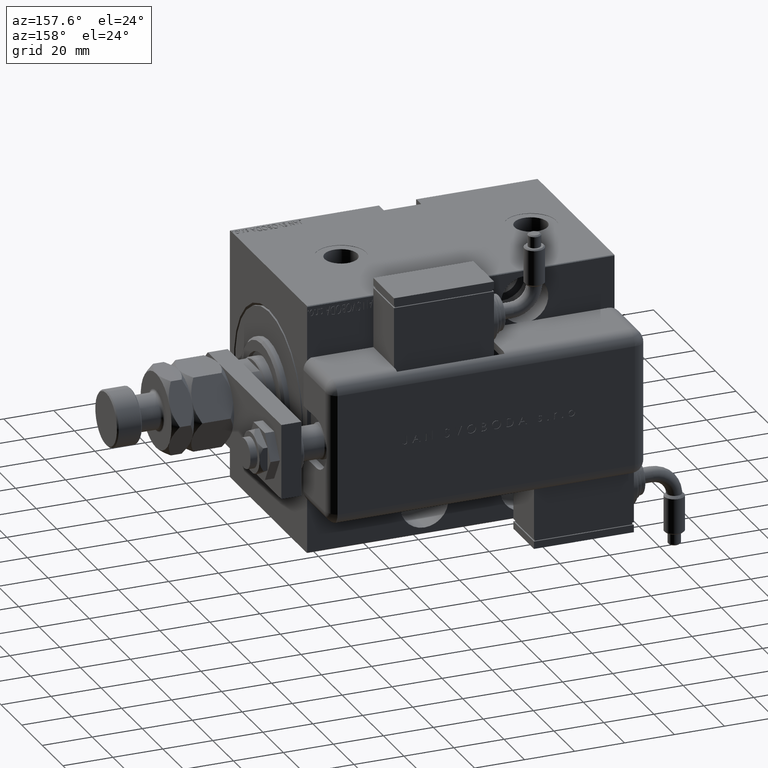
[diagram: clean part render]
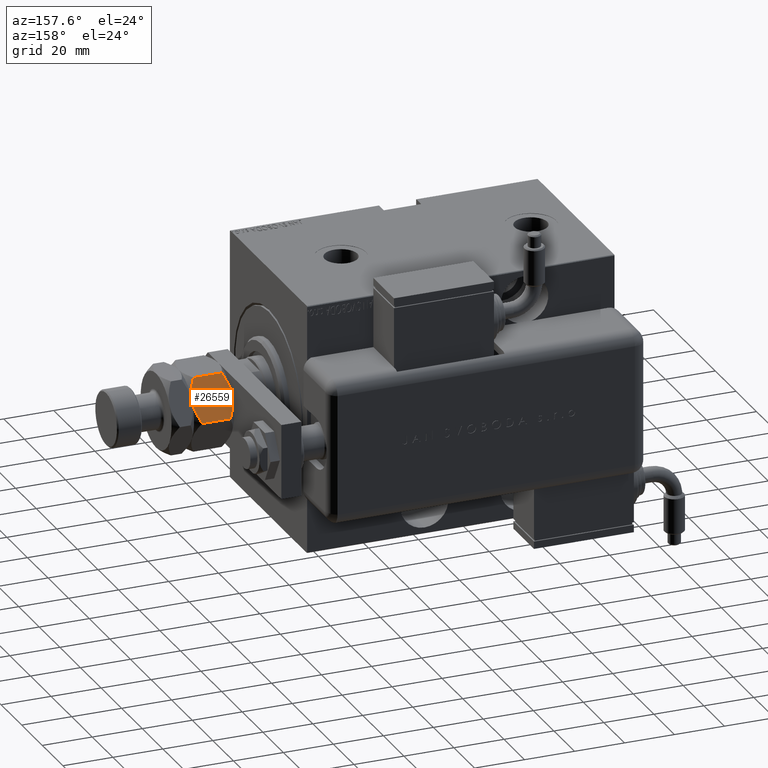
[diagram: same view with one face highlighted and labeled with its STEP entity id]
A machine part, auxiliary view. The second image highlights one B-rep face of the part: STEP entity #26559.
In plain terms, the highlighted planar face has unit normal (0, -0.866, -0.5).
Its self-contained STEP definition (entity closure, byte-faithful):
#1046 = B_SPLINE_CURVE_WITH_KNOTS ( 'NONE', 3,
 ( #11106, #59759, #20058, #19733, #45015, #10459, #54304, #35404 ),
 .UNSPECIFIED., .F., .F.,
 ( 4, 2, 2, 4 ),
 ( 2.544309033652409006E-07, 0.004488823491893913914, 0.006733108022389184058, 0.008977392552884454202 ),
 .UNSPECIFIED. ) ;
#1560 = CARTESIAN_POINT ( 'NONE',  ( -7.499999999999992895, 12.99038105676658361, 0.000000000000000000 ) ) ;
#2812 = VECTOR ( 'NONE', #18229, 1000.000000000000000 ) ;
#3969 = PLANE ( 'NONE',  #59620 ) ;
#6371 = CARTESIAN_POINT ( 'NONE',  ( -4.913081180497406386, 14.48393933357811214, 0.2303299219392169472 ) ) ;
#6703 = VERTEX_POINT ( 'NONE', #26928 ) ;
#7673 = CARTESIAN_POINT ( 'NONE',  ( -4.247772349543481596, 14.86805556622359070, 15.55242859148697043 ) ) ;
#7983 = CARTESIAN_POINT ( 'NONE',  ( -6.176419610670691895, 13.75455055083996747, 15.94046462602529957 ) ) ;
#8440 = ORIENTED_EDGE ( 'NONE', *, *, #47569, .F. ) ;
#8458 = B_SPLINE_CURVE_WITH_KNOTS ( 'NONE', 3,
 ( #56320, #31969, #51497, #7673, #46704, #7983, #47003, #18203 ),
 .UNSPECIFIED., .F., .F.,
 ( 4, 2, 2, 4 ),
 ( 2.544309033646407248E-07, 0.004488823491893900036, 0.006733108022389169313, 0.008977392552884438590 ),
 .UNSPECIFIED. ) ;
#8603 = B_SPLINE_CURVE_WITH_KNOTS ( 'NONE', 3,
 ( #35389, #59742, #10128, #30586, #20043, #35056 ),
 .UNSPECIFIED., .F., .F.,
 ( 4, 2, 4 ),
 ( 0.008977392552884438590, 0.01343452311421656012, 0.01789165367554868338 ),
 .UNSPECIFIED. ) ;
#8615 = LINE ( 'NONE', #14071, #2812 ) ;
#10128 = CARTESIAN_POINT ( 'NONE',  ( -10.08691881950258740, 11.49682277995505864, 15.76967007806078236 ) ) ;
#10459 = CARTESIAN_POINT ( 'NONE',  ( -8.823580389329299223, 12.22621156269320863, 0.05953537397470442388 ) ) ;
#10800 = EDGE_CURVE ( 'NONE', #44093, #22309, #8615, .T. ) ;
#11106 = CARTESIAN_POINT ( 'NONE',  ( -15.00000000000000000, 8.660254037844394404, 2.320508075688769711 ) ) ;
#13391 = ORIENTED_EDGE ( 'NONE', *, *, #47802, .F. ) ;
#13482 = DIRECTION ( 'NONE',  ( -0.000000000000000000, -0.000000000000000000, -1.000000000000000000 ) ) ;
#14071 = CARTESIAN_POINT ( 'NONE',  ( 0.000000000000000000, 17.32050807568877104, 16.00000000000000000 ) ) ;
#14244 = VERTEX_POINT ( 'NONE', #43988 ) ;
#18203 = CARTESIAN_POINT ( 'NONE',  ( -7.499999999999991118, 12.99038105676658184, 16.00000000000000000 ) ) ;
#18229 = DIRECTION ( 'NONE',  ( -0.000000000000000000, -0.000000000000000000, -1.000000000000000000 ) ) ;
#18998 = DIRECTION ( 'NONE',  ( 0.4999999999999995559, -0.8660254037844389297, 0.000000000000000000 ) ) ;
#19321 = DIRECTION ( 'NONE',  ( 0.8660254037844389297, 0.4999999999999995559, 0.000000000000000000 ) ) ;
#19702 = EDGE_CURVE ( 'NONE', #14244, #55301, #1046, .T. ) ;
#19733 = CARTESIAN_POINT ( 'NONE',  ( -10.75222765045650597, 11.11270654730957119, 0.4475714085130295117 ) ) ;
#20043 = CARTESIAN_POINT ( 'NONE',  ( -13.82525345580783771, 9.338494271363320109, 14.35773215783021683 ) ) ;
#20058 = CARTESIAN_POINT ( 'NONE',  ( -12.62116548881249400, 10.03367478323607109, 1.064486067744009556 ) ) ;
#20561 = CARTESIAN_POINT ( 'NONE',  ( 7.621669386706803087E-17, 17.32050807568877104, 2.320508075688761718 ) ) ;
#22309 = VERTEX_POINT ( 'NONE', #20561 ) ;
#22622 = CARTESIAN_POINT ( 'NONE',  ( -7.499999999999992895, 12.99038105676658361, 0.000000000000000000 ) ) ;
#23106 = CARTESIAN_POINT ( 'NONE',  ( -7.499999999999991118, 12.99038105676658184, 16.00000000000000000 ) ) ;
#23594 = ORIENTED_EDGE ( 'NONE', *, *, #55507, .F. ) ;
#26559 = ADVANCED_FACE ( 'NONE', ( #52285 ), #3969, .F. ) ;
#26928 = CARTESIAN_POINT ( 'NONE',  ( -15.00000000000000000, 8.660254037844392627, 13.67949192431123429 ) ) ;
#28300 = ORIENTED_EDGE ( 'NONE', *, *, #19702, .F. ) ;
#29238 = EDGE_CURVE ( 'NONE', #55301, #22309, #48031, .T. ) ;
#30586 = CARTESIAN_POINT ( 'NONE',  ( -12.61607045183964715, 10.03661640420387435, 14.93952096862911816 ) ) ;
#31969 = CARTESIAN_POINT ( 'NONE',  ( -1.176108425306640504, 16.64148155974180199, 14.35851844025821578 ) ) ;
#33896 = CARTESIAN_POINT ( 'NONE',  ( 3.803331551779305683E-16, 17.32050807568877104, 13.67949192431124317 ) ) ;
#35056 = CARTESIAN_POINT ( 'NONE',  ( -15.00000000000000000, 8.660254037844392627, 13.67949192431123429 ) ) ;
#35389 = CARTESIAN_POINT ( 'NONE',  ( -7.499999999999991118, 12.99038105676658184, 16.00000000000000000 ) ) ;
#35404 = CARTESIAN_POINT ( 'NONE',  ( -7.499999999999992895, 12.99038105676658361, 0.000000000000000000 ) ) ;
#36385 = VERTEX_POINT ( 'NONE', #23106 ) ;
#40615 = CARTESIAN_POINT ( 'NONE',  ( -6.195449321423083688, 13.74356374221447297, 3.003578830963748213E-15 ) ) ;
#43982 = VECTOR ( 'NONE', #13482, 1000.000000000000000 ) ;
#43988 = CARTESIAN_POINT ( 'NONE',  ( -15.00000000000000000, 8.660254037844394404, 2.320508075688769711 ) ) ;
#44093 = VERTEX_POINT ( 'NONE', #33896 ) ;
#45015 = CARTESIAN_POINT ( 'NONE',  ( -10.11832554202262280, 11.47869010025375403, 0.2838026619462963862 ) ) ;
#45404 = CARTESIAN_POINT ( 'NONE',  ( -2.383929548160348855, 15.94414570932928576, 1.060479031370877401 ) ) ;
#46704 = CARTESIAN_POINT ( 'NONE',  ( -4.881674457977373649, 14.50207201327941675, 15.71619733805371055 ) ) ;
#47003 = CARTESIAN_POINT ( 'NONE',  ( -6.843123817691743938, 13.36962869744650995, 16.00000000000000355 ) ) ;
#47569 = EDGE_CURVE ( 'NONE', #6703, #14244, #48018, .T. ) ;
#47802 = EDGE_CURVE ( 'NONE', #44093, #36385, #8458, .T. ) ;
#48018 = LINE ( 'NONE', #52829, #43982 ) ;
#48031 = B_SPLINE_CURVE_WITH_KNOTS ( 'NONE', 3,
 ( #1560, #40615, #6371, #45404, #50838, #55967 ),
 .UNSPECIFIED., .F., .F.,
 ( 4, 2, 4 ),
 ( 0.008977392552884454202, 0.01343452311421656706, 0.01789165367554867991 ),
 .UNSPECIFIED. ) ;
#50838 = CARTESIAN_POINT ( 'NONE',  ( -1.174746544192158293, 16.64226784216984356, 1.642267842169780501 ) ) ;
#51404 = ORIENTED_EDGE ( 'NONE', *, *, #10800, .T. ) ;
#51497 = CARTESIAN_POINT ( 'NONE',  ( -2.378834511187503331, 15.94708733029709435, 14.93551393225599710 ) ) ;
#52285 = FACE_OUTER_BOUND ( 'NONE', #55686, .T. ) ;
#52829 = CARTESIAN_POINT ( 'NONE',  ( -15.00000000000000000, 8.660254037844392627, 16.00000000000000000 ) ) ;
#53553 = CARTESIAN_POINT ( 'NONE',  ( 0.000000000000000000, 17.32050807568877104, 16.00000000000000000 ) ) ;
#54304 = CARTESIAN_POINT ( 'NONE',  ( -8.156876182308247181, 12.61113341608666083, 3.106916850528774038E-15 ) ) ;
#55301 = VERTEX_POINT ( 'NONE', #22622 ) ;
#55507 = EDGE_CURVE ( 'NONE', #36385, #6703, #8603, .T. ) ;
#55686 = EDGE_LOOP ( 'NONE', ( #28300, #8440, #23594, #13391, #51404, #60136 ) ) ;
#55967 = CARTESIAN_POINT ( 'NONE',  ( 7.621669386706803087E-17, 17.32050807568877104, 2.320508075688761718 ) ) ;
#56320 = CARTESIAN_POINT ( 'NONE',  ( 3.803331551779305683E-16, 17.32050807568877104, 13.67949192431124317 ) ) ;
#59620 = AXIS2_PLACEMENT_3D ( 'NONE', #53553, #18998, #19321 ) ;
#59742 = CARTESIAN_POINT ( 'NONE',  ( -8.804550678576905653, 12.23719837131869781, 16.00000000000000000 ) ) ;
#59759 = CARTESIAN_POINT ( 'NONE',  ( -13.82389157469336283, 9.339280553791375894, 1.641481559741795548 ) ) ;
#60136 = ORIENTED_EDGE ( 'NONE', *, *, #29238, .F. ) ;